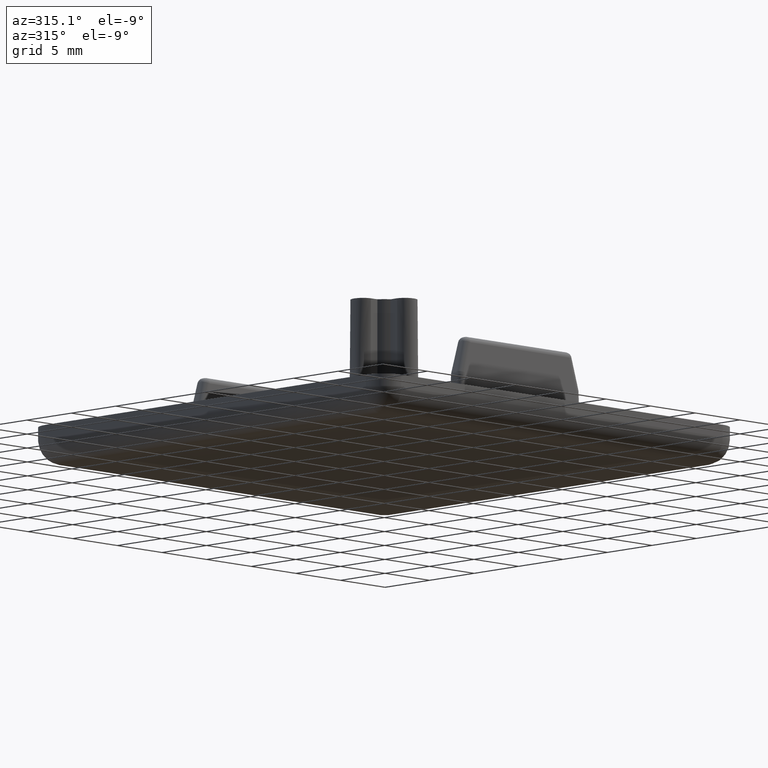
[diagram: clean part render]
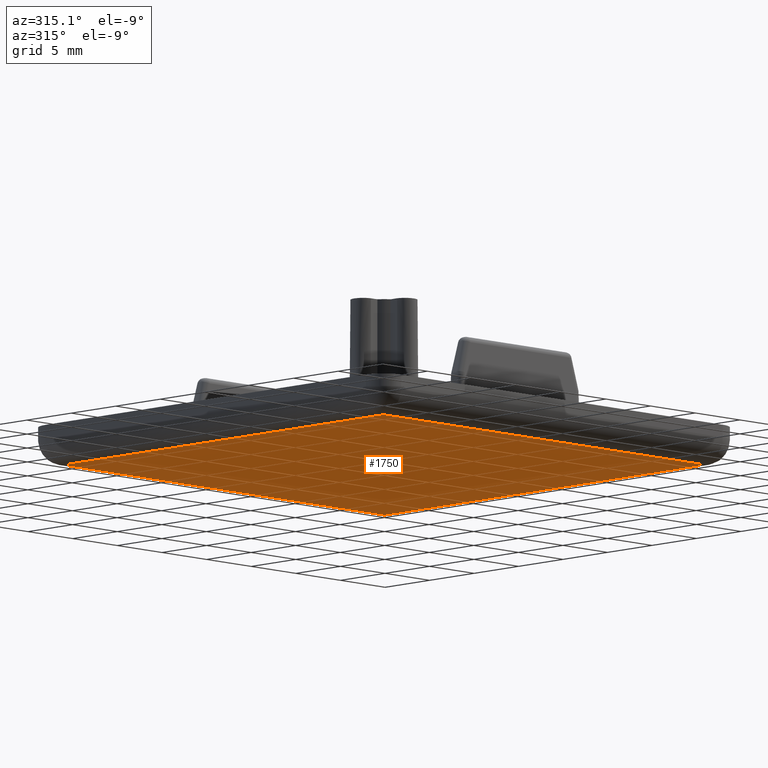
[diagram: same view with one face highlighted and labeled with its STEP entity id]
A machine part, auxiliary view. The second image highlights one B-rep face of the part: STEP entity #1750.
In plain terms, the highlighted planar face has unit normal (0, 0, 1).
Its self-contained STEP definition (entity closure, byte-faithful):
#60=PLANE('',#1954);
#191=LINE('',#3296,#327);
#195=LINE('',#3309,#331);
#197=LINE('',#3312,#333);
#199=LINE('',#3315,#335);
#327=VECTOR('',#2461,36.);
#331=VECTOR('',#2477,36.);
#333=VECTOR('',#2481,36.);
#335=VECTOR('',#2485,36.);
#502=FACE_OUTER_BOUND('',#616,.T.);
#616=EDGE_LOOP('',(#1613,#1614,#1615,#1616));
#866=VERTEX_POINT('',#3267);
#869=VERTEX_POINT('',#3277);
#872=VERTEX_POINT('',#3287);
#875=VERTEX_POINT('',#3300);
#1116=EDGE_CURVE('',#866,#872,#191,.T.);
#1123=EDGE_CURVE('',#872,#875,#195,.T.);
#1125=EDGE_CURVE('',#875,#869,#197,.T.);
#1127=EDGE_CURVE('',#869,#866,#199,.T.);
#1613=ORIENTED_EDGE('',*,*,#1116,.F.);
#1614=ORIENTED_EDGE('',*,*,#1127,.F.);
#1615=ORIENTED_EDGE('',*,*,#1125,.F.);
#1616=ORIENTED_EDGE('',*,*,#1123,.F.);
#1750=ADVANCED_FACE('',(#502),#60,.F.);
#1954=AXIS2_PLACEMENT_3D('',#3319,#2491,#2492);
#2461=DIRECTION('',(1.,0.,0.));
#2477=DIRECTION('',(0.,1.,0.));
#2481=DIRECTION('',(-1.,0.,0.));
#2485=DIRECTION('',(0.,-1.,0.));
#2491=DIRECTION('center_axis',(0.,0.,1.));
#2492=DIRECTION('ref_axis',(1.,0.,0.));
#3267=CARTESIAN_POINT('',(-18.,-18.,-1.5));
#3277=CARTESIAN_POINT('',(-18.,18.,-1.5));
#3287=CARTESIAN_POINT('',(18.,-18.,-1.5));
#3296=CARTESIAN_POINT('',(-10.,-18.,-1.5));
#3300=CARTESIAN_POINT('',(18.,18.,-1.5));
#3309=CARTESIAN_POINT('',(18.,-10.,-1.5));
#3312=CARTESIAN_POINT('',(10.,18.,-1.5));
#3315=CARTESIAN_POINT('',(-18.,10.,-1.5));
#3319=CARTESIAN_POINT('Origin',(0.,0.,-1.5));